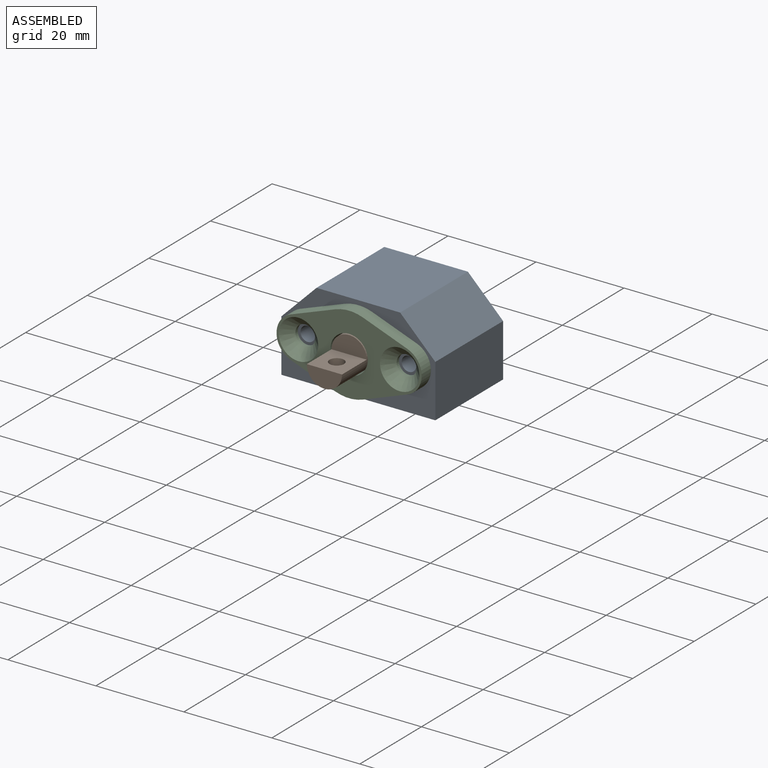
[diagram: assembled view]
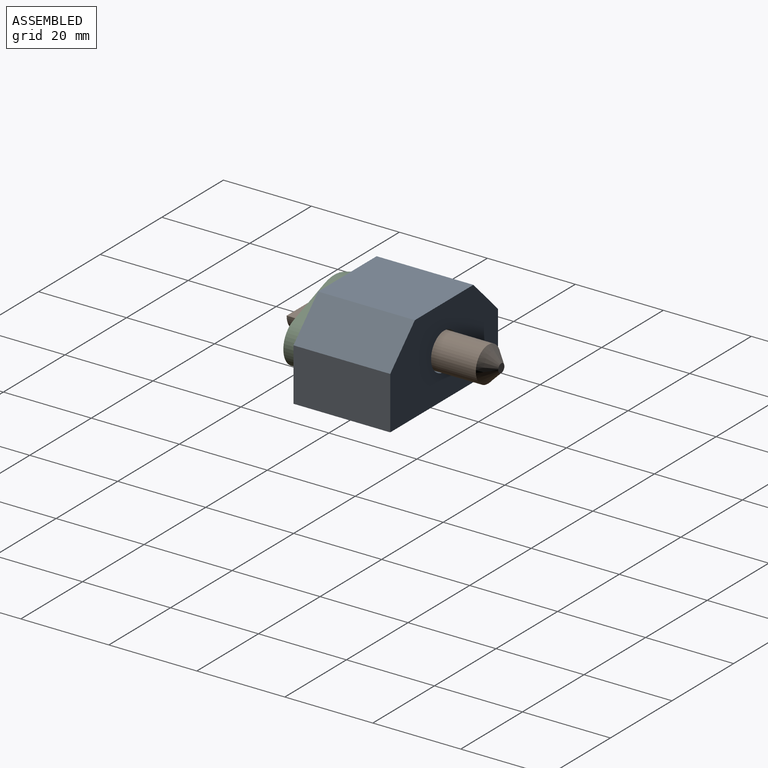
[diagram: assembled view, second angle]
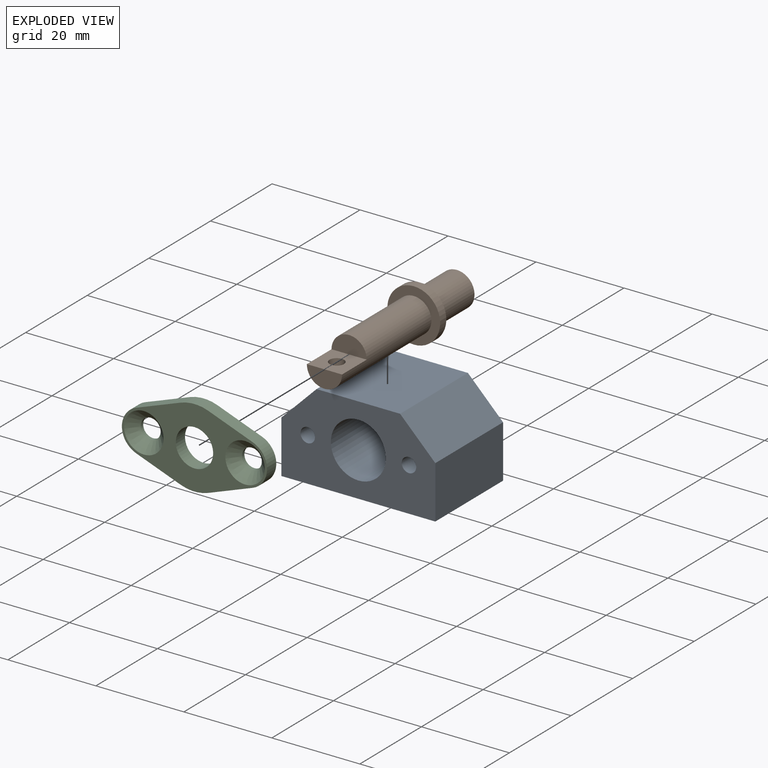
[diagram: exploded view]
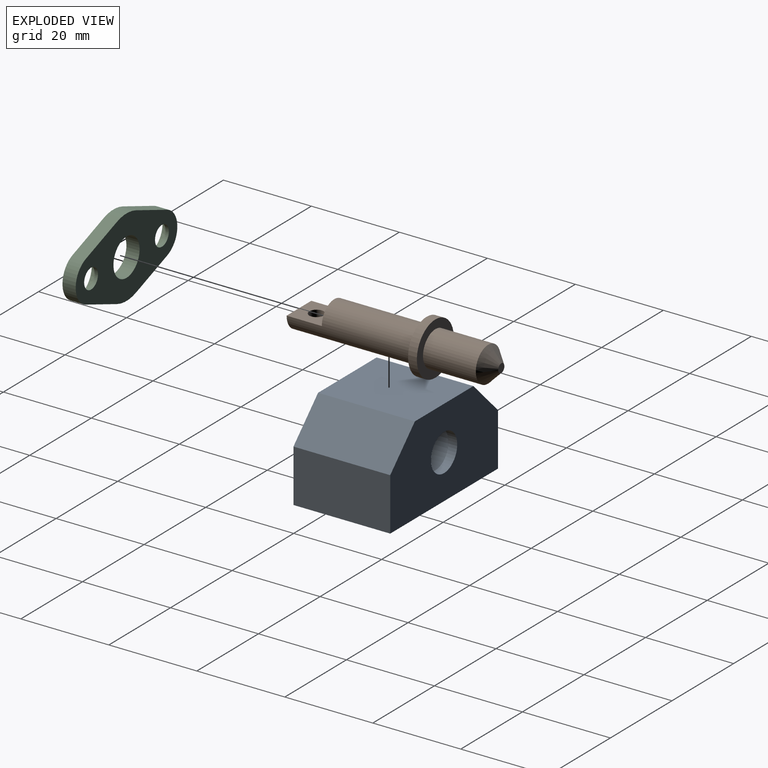
[diagram: exploded view, second angle]
ASSEMBLY  parts=3 mates=2
PART A: 15 faces, bbox 35x22x20 mm
  f0: plane 22x12mm, normal (-1,0,0), area 264mm2, adj f1,f3,f5,f14
  f1: plane 35x20mm, normal (0,-1,0), area 496.2mm2, adj f0,f2,f4,f5,f7,f10,f12,f13
  f2: plane 22x12mm, normal (1,0,0), area 264mm2, adj f1,f3,f5,f13
  f3: plane 35x20mm, normal (0,1,0), area 579.3mm2, adj f0,f2,f4,f5,f8,f13,f14
  f4: plane 22x19mm, normal (0,0,1), area 418mm2, adj f1,f3,f13,f14
  f5: plane 35x22mm, normal (0,0,-1), area 770mm2, adj f0,f1,f2,f3
  f6: plane 12.5x12.5mm, normal (0,-1,0), area 66mm2, adj f7,f8
  f7: cylinder r=6.25mm len=20mm, axis (0,-1,0), area 785.4mm2, adj f1,f6
  f8: cylinder r=4.25mm len=8.5mm, axis (0,-1,0), area 53.4mm2, adj f3,f6
  f9: cone r=0mm half-angle=59deg, axis (0,-1,0), area 10mm2, adj f10
  f10: cylinder r=1.65mm len=7.4mm, axis (0,-1,0), area 76.7mm2, adj f1,f9
  f11: cone r=0mm half-angle=59deg, axis (0,-1,0), area 10mm2, adj f12
  f12: cylinder r=1.65mm len=7.4mm, axis (0,-1,0), area 76.7mm2, adj f1,f11
  f13: plane 22x8mm, normal (0.71,0,0.71), area 248.9mm2, adj f1,f2,f3,f4
  f14: plane 22x8mm, normal (-0.71,0,0.71), area 248.9mm2, adj f0,f1,f3,f4
PART B: 11 faces, bbox 12x46x12 mm
  f0: cylinder r=4mm len=29mm, axis (0,1,0), area 619.6mm2, adj f1,f3,f8,f9,f10
  f1: plane 8x4mm, normal (0,1,0), area 25.1mm2, adj f0,f8
  f2: cylinder r=6mm len=12mm, axis (0,-1,0), area 75.4mm2, adj f3,f4
  f3: plane 12x12mm, normal (0,1,0), area 62.8mm2, adj f0,f2
  f4: plane 12x12mm, normal (0,-1,0), area 62.8mm2, adj f2,f6
  f5: plane 2x2mm, normal (0,-1,0), area 3.1mm2, adj f7
  f6: cylinder r=4mm len=12mm, axis (0,1,0), area 301.6mm2, adj f4,f7
  f7: cone r=1mm half-angle=45deg, axis (0,1,0), area 66.6mm2, adj f5,f6
  f8: plane 8x8mm, normal (0,0,1), area 55.4mm2, adj f0,f1,f9,f10
  f9: plane 8x4mm, normal (0,1,0), area 25.1mm2, adj f0,f8
  f10: cylinder r=1.65mm len=4mm, axis (0,0,1), area 39.6mm2, adj f0,f8
PART C: 15 faces, bbox 33x3x18 mm
  f0: plane 10.11x3.75mm, normal (-0.35,0,-0.94), area 32.3mm2, adj f1,f7,f9,f10
  f1: cylinder r=9mm len=6.26mm, axis (0,1,0), area 19.2mm2, adj f0,f2,f9,f10
  f2: plane 10.11x3.75mm, normal (0.35,0,-0.94), area 32.3mm2, adj f1,f3,f9,f10
  f3: cylinder r=5mm len=9.38mm, axis (0,1,0), area 36.5mm2, adj f2,f4,f9,f10
  f4: plane 10.11x3.75mm, normal (0.35,0,0.94), area 32.3mm2, adj f3,f5,f9,f10
  f5: cylinder r=9mm len=6.26mm, axis (0,1,0), area 19.2mm2, adj f4,f6,f9,f10
  f6: plane 10.11x3.75mm, normal (-0.35,0,0.94), area 32.3mm2, adj f5,f7,f9,f10
  f7: cylinder r=5mm len=9.38mm, axis (0,1,0), area 36.5mm2, adj f0,f6,f9,f10
  f8: cylinder r=4.25mm len=8.5mm, axis (0,1,0), area 80.1mm2, adj f9,f10
  f9: plane 33x18mm, normal (0,-1,0), area 237.4mm2, adj f0,f1,f2,f3,f4,f5,f6,f7
  f10: plane 33x18mm, normal (0,1,0), area 331.7mm2, adj f0,f1,f2,f3,f4,f5,f6,f7
  f11: cylinder r=2.25mm len=4.5mm, axis (0,-1,0), area 10.9mm2, adj f10,f12
  f12: cone r=2.25mm half-angle=45deg, axis (0,-1,0), area 66.7mm2, adj f9,f11
  f13: cylinder r=2.25mm len=4.5mm, axis (0,-1,0), area 10.9mm2, adj f10,f14
  f14: cone r=2.25mm half-angle=45deg, axis (0,-1,0), area 66.7mm2, adj f9,f13
PLACE A t=(-23.61,-6.07,7.59)mm fixed
PLACE B rot(axis=(0,0,1),180deg) t=(-70.11,13.93,-30.25)mm
PLACE C t=(-23.61,-6.07,7.59)mm
MATE fastened C.f7 <-> A.f11  axis (0,1,0) through (-17.61,-6.07,17.59)mm
MATE slider A.f7 <-> B.f0  axis (0,-1,0) through (-6.11,13.93,17.59)mm
